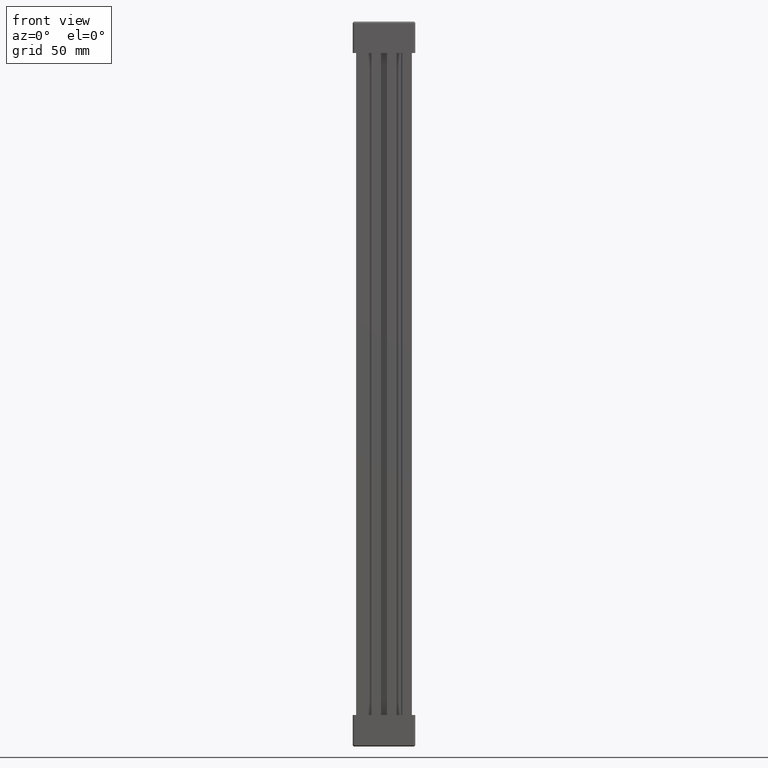
[diagram: clean part render]
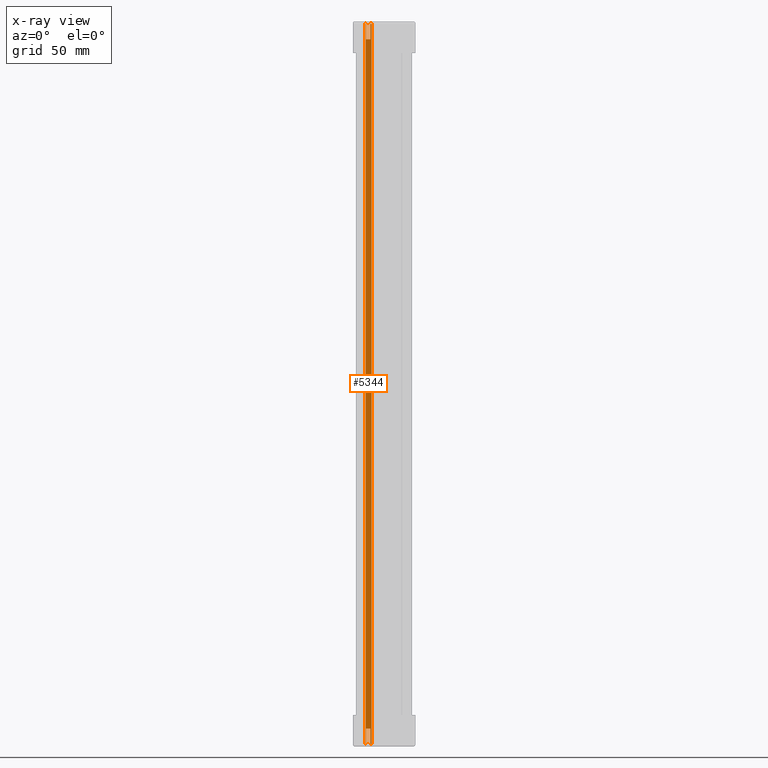
[diagram: x-ray — body ghosted, one internal face saturated and labeled with its STEP entity id]
A machine part, front view, then the same camera in x-ray: the body is ghosted and one INTERNAL B-rep face — a face not visible from any outside direction — is saturated and labeled: STEP entity #5344.
In plain terms, the highlighted planar face has unit normal (0, -1, 0).
Its self-contained STEP definition (entity closure, byte-faithful):
#5344 = ADVANCED_FACE ( 'NONE', ( #18712 ), #18636, .F. ) ;
#5619 = EDGE_CURVE ( 'NONE', #30389, #30298, #8293, .T. ) ;
#5621 = EDGE_CURVE ( 'NONE', #30316, #30359, #8300, .T. ) ;
#5622 = EDGE_CURVE ( 'NONE', #30355, #30447, #8281, .T. ) ;
#5624 = EDGE_CURVE ( 'NONE', #30316, #30310, #8283, .T. ) ;
#5641 = EDGE_CURVE ( 'NONE', #30399, #30357, #8309, .T. ) ;
#5644 = EDGE_CURVE ( 'NONE', #30310, #30287, #8324, .T. ) ;
#5648 = EDGE_CURVE ( 'NONE', #30447, #30359, #8383, .T. ) ;
#5659 = EDGE_CURVE ( 'NONE', #30357, #30389, #8363, .T. ) ;
#5666 = EDGE_CURVE ( 'NONE', #30287, #30399, #8407, .T. ) ;
#5670 = EDGE_CURVE ( 'NONE', #30298, #30331, #8421, .T. ) ;
#5685 = EDGE_CURVE ( 'NONE', #30392, #30355, #8459, .T. ) ;
#5695 = EDGE_CURVE ( 'NONE', #30331, #30392, #8523, .T. ) ;
#8260 = CARTESIAN_POINT ( 'NONE',  ( 6.500000000000061300, 9.300000000000006000, 306.0000000000000000 ) ) ;
#8267 = CARTESIAN_POINT ( 'NONE',  ( 3.999999999999892500, 9.300000000000006000, 306.0000000000000000 ) ) ;
#8278 = DIRECTION ( 'NONE',  ( 0.0000000000000000000, 0.0000000000000000000, 1.000000000000000000 ) ) ;
#8281 = LINE ( 'NONE', #8294, #32923 ) ;
#8283 = LINE ( 'NONE', #8287, #32942 ) ;
#8287 = CARTESIAN_POINT ( 'NONE',  ( -302.0235938616499400, 9.300000000000007800, 1.276756478318930000E-012 ) ) ;
#8290 = DIRECTION ( 'NONE',  ( 0.0000000000000000000, 0.0000000000000000000, 1.000000000000000000 ) ) ;
#8291 = DIRECTION ( 'NONE',  ( -0.0000000000000000000, 0.0000000000000000000, 1.000000000000000000 ) ) ;
#8293 = LINE ( 'NONE', #8260, #32953 ) ;
#8294 = CARTESIAN_POINT ( 'NONE',  ( 4.154264213289349300, 9.300000000000007800, 304.0000000000000000 ) ) ;
#8296 = DIRECTION ( 'NONE',  ( 1.000000000000000000, 0.0000000000000000000, 0.0000000000000000000 ) ) ;
#8300 = LINE ( 'NONE', #8267, #32944 ) ;
#8309 = LINE ( 'NONE', #8338, #33029 ) ;
#8324 = LINE ( 'NONE', #8325, #33000 ) ;
#8325 = CARTESIAN_POINT ( 'NONE',  ( 4.154264213291403600, 9.300000000000007800, 306.0000000000000000 ) ) ;
#8338 = CARTESIAN_POINT ( 'NONE',  ( 6.054264213289362000, 9.300000000000007800, 306.0000000000000000 ) ) ;
#8340 = DIRECTION ( 'NONE',  ( 0.0000000000000000000, -0.0000000000000000000, -1.000000000000000000 ) ) ;
#8357 = DIRECTION ( 'NONE',  ( -1.000000000000000000, -0.0000000000000000000, -0.0000000000000000000 ) ) ;
#8363 = LINE ( 'NONE', #8370, #33001 ) ;
#8364 = CARTESIAN_POINT ( 'NONE',  ( -302.0235938616499400, 9.300000000000007800, 304.0000000000000000 ) ) ;
#8370 = CARTESIAN_POINT ( 'NONE',  ( -302.0235938616499400, 9.300000000000007800, 1.942890293094023900E-012 ) ) ;
#8381 = DIRECTION ( 'NONE',  ( 1.000000000000000000, 0.0000000000000000000, 0.0000000000000000000 ) ) ;
#8383 = LINE ( 'NONE', #8364, #33007 ) ;
#8400 = DIRECTION ( 'NONE',  ( -0.0000000000000000000, 0.0000000000000000000, 1.000000000000000000 ) ) ;
#8405 = CARTESIAN_POINT ( 'NONE',  ( -302.0235938616499400, 9.300000000000007800, 304.0000000000000000 ) ) ;
#8407 = LINE ( 'NONE', #8440, #33042 ) ;
#8421 = LINE ( 'NONE', #8405, #33016 ) ;
#8437 = DIRECTION ( 'NONE',  ( -1.000000000000000000, -0.0000000000000000000, -0.0000000000000000000 ) ) ;
#8440 = CARTESIAN_POINT ( 'NONE',  ( -302.0235938616499400, 9.300000000000007800, 6.500000000001337600 ) ) ;
#8443 = DIRECTION ( 'NONE',  ( 1.000000000000000000, 0.0000000000000000000, 0.0000000000000000000 ) ) ;
#8459 = LINE ( 'NONE', #8477, #32987 ) ;
#8475 = DIRECTION ( 'NONE',  ( -1.000000000000000000, -0.0000000000000000000, -0.0000000000000000000 ) ) ;
#8477 = CARTESIAN_POINT ( 'NONE',  ( -302.0235938616499400, 9.300000000000007800, 297.4999999999981200 ) ) ;
#8522 = DIRECTION ( 'NONE',  ( 0.0000000000000000000, -0.0000000000000000000, -1.000000000000000000 ) ) ;
#8523 = LINE ( 'NONE', #8528, #33094 ) ;
#8528 = CARTESIAN_POINT ( 'NONE',  ( 6.054264213291416400, 9.300000000000007800, 304.0000000000000000 ) ) ;
#18636 = PLANE ( 'NONE',  #32714 ) ;
#18707 = DIRECTION ( 'NONE',  ( 0.0000000000000000000, -1.000000000000000000, 0.0000000000000000000 ) ) ;
#18709 = DIRECTION ( 'NONE',  ( 0.0000000000000000000, -0.0000000000000000000, -1.000000000000000000 ) ) ;
#18712 = FACE_OUTER_BOUND ( 'NONE', #31015, .T. ) ;
#18743 = CARTESIAN_POINT ( 'NONE',  ( -302.0235938616499400, 9.300000000000007800, 306.0000000000000000 ) ) ;
#23909 = ORIENTED_EDGE ( 'NONE', *, *, #5666, .F. ) ;
#23922 = ORIENTED_EDGE ( 'NONE', *, *, #5659, .F. ) ;
#23923 = ORIENTED_EDGE ( 'NONE', *, *, #5641, .F. ) ;
#23934 = ORIENTED_EDGE ( 'NONE', *, *, #5644, .F. ) ;
#23954 = ORIENTED_EDGE ( 'NONE', *, *, #5648, .F. ) ;
#23956 = ORIENTED_EDGE ( 'NONE', *, *, #5695, .F. ) ;
#23957 = ORIENTED_EDGE ( 'NONE', *, *, #5670, .F. ) ;
#23963 = ORIENTED_EDGE ( 'NONE', *, *, #5619, .F. ) ;
#23965 = ORIENTED_EDGE ( 'NONE', *, *, #5621, .T. ) ;
#23982 = ORIENTED_EDGE ( 'NONE', *, *, #5622, .F. ) ;
#24011 = ORIENTED_EDGE ( 'NONE', *, *, #5685, .F. ) ;
#24017 = ORIENTED_EDGE ( 'NONE', *, *, #5624, .F. ) ;
#24701 = CARTESIAN_POINT ( 'NONE',  ( 4.154264213291387600, 9.300000000000006000, 303.9999999999986400 ) ) ;
#25036 = CARTESIAN_POINT ( 'NONE',  ( 3.999999999999892500, 9.300000000000006000, 303.9999999999993700 ) ) ;
#25038 = CARTESIAN_POINT ( 'NONE',  ( 6.054264213289661400, 9.300000000000007800, 297.4999999999981200 ) ) ;
#25040 = CARTESIAN_POINT ( 'NONE',  ( 6.054264213289384200, 9.300000000000007800, 6.500000000001948700 ) ) ;
#25042 = CARTESIAN_POINT ( 'NONE',  ( 4.154264213289340400, 9.300000000000007800, 297.4999999999985800 ) ) ;
#25052 = CARTESIAN_POINT ( 'NONE',  ( 6.500000000000061300, 9.300000000000006000, 2.028384404851698200E-012 ) ) ;
#25065 = CARTESIAN_POINT ( 'NONE',  ( 6.054264213290401200, 9.300000000000006000, 1.942890293094023900E-012 ) ) ;
#26343 = CARTESIAN_POINT ( 'NONE',  ( 3.999999999999892500, 9.300000000000006000, 1.272114358264822400E-012 ) ) ;
#26353 = CARTESIAN_POINT ( 'NONE',  ( 6.054264213291427900, 9.300000000000006000, 303.9999999999994900 ) ) ;
#26357 = CARTESIAN_POINT ( 'NONE',  ( 6.500000000000061300, 9.300000000000006000, 303.9999999999994900 ) ) ;
#26372 = CARTESIAN_POINT ( 'NONE',  ( 4.154264213289589900, 9.300000000000007800, 6.500000000001350000 ) ) ;
#26373 = CARTESIAN_POINT ( 'NONE',  ( 4.154264213291395600, 9.300000000000006000, 1.332267629550187800E-012 ) ) ;
#30287 = VERTEX_POINT ( 'NONE', #26372 ) ;
#30298 = VERTEX_POINT ( 'NONE', #26357 ) ;
#30310 = VERTEX_POINT ( 'NONE', #26373 ) ;
#30316 = VERTEX_POINT ( 'NONE', #26343 ) ;
#30331 = VERTEX_POINT ( 'NONE', #26353 ) ;
#30355 = VERTEX_POINT ( 'NONE', #25042 ) ;
#30357 = VERTEX_POINT ( 'NONE', #25065 ) ;
#30359 = VERTEX_POINT ( 'NONE', #25036 ) ;
#30389 = VERTEX_POINT ( 'NONE', #25052 ) ;
#30392 = VERTEX_POINT ( 'NONE', #25038 ) ;
#30399 = VERTEX_POINT ( 'NONE', #25040 ) ;
#30447 = VERTEX_POINT ( 'NONE', #24701 ) ;
#31015 = EDGE_LOOP ( 'NONE', ( #23957, #23963, #23922, #23923, #23909, #23934, #24017, #23965, #23954, #23982, #24011, #23956 ) ) ;
#32714 = AXIS2_PLACEMENT_3D ( 'NONE', #18743, #18707, #18709 ) ;
#32923 = VECTOR ( 'NONE', #8291, 1000.000000000000000 ) ;
#32942 = VECTOR ( 'NONE', #8296, 1000.000000000000000 ) ;
#32944 = VECTOR ( 'NONE', #8278, 1000.000000000000000 ) ;
#32953 = VECTOR ( 'NONE', #8290, 1000.000000000000000 ) ;
#32987 = VECTOR ( 'NONE', #8475, 1000.000000000000000 ) ;
#33000 = VECTOR ( 'NONE', #8400, 1000.000000000000000 ) ;
#33001 = VECTOR ( 'NONE', #8381, 1000.000000000000000 ) ;
#33007 = VECTOR ( 'NONE', #8357, 1000.000000000000000 ) ;
#33016 = VECTOR ( 'NONE', #8437, 1000.000000000000000 ) ;
#33029 = VECTOR ( 'NONE', #8340, 1000.000000000000000 ) ;
#33042 = VECTOR ( 'NONE', #8443, 1000.000000000000000 ) ;
#33094 = VECTOR ( 'NONE', #8522, 1000.000000000000000 ) ;